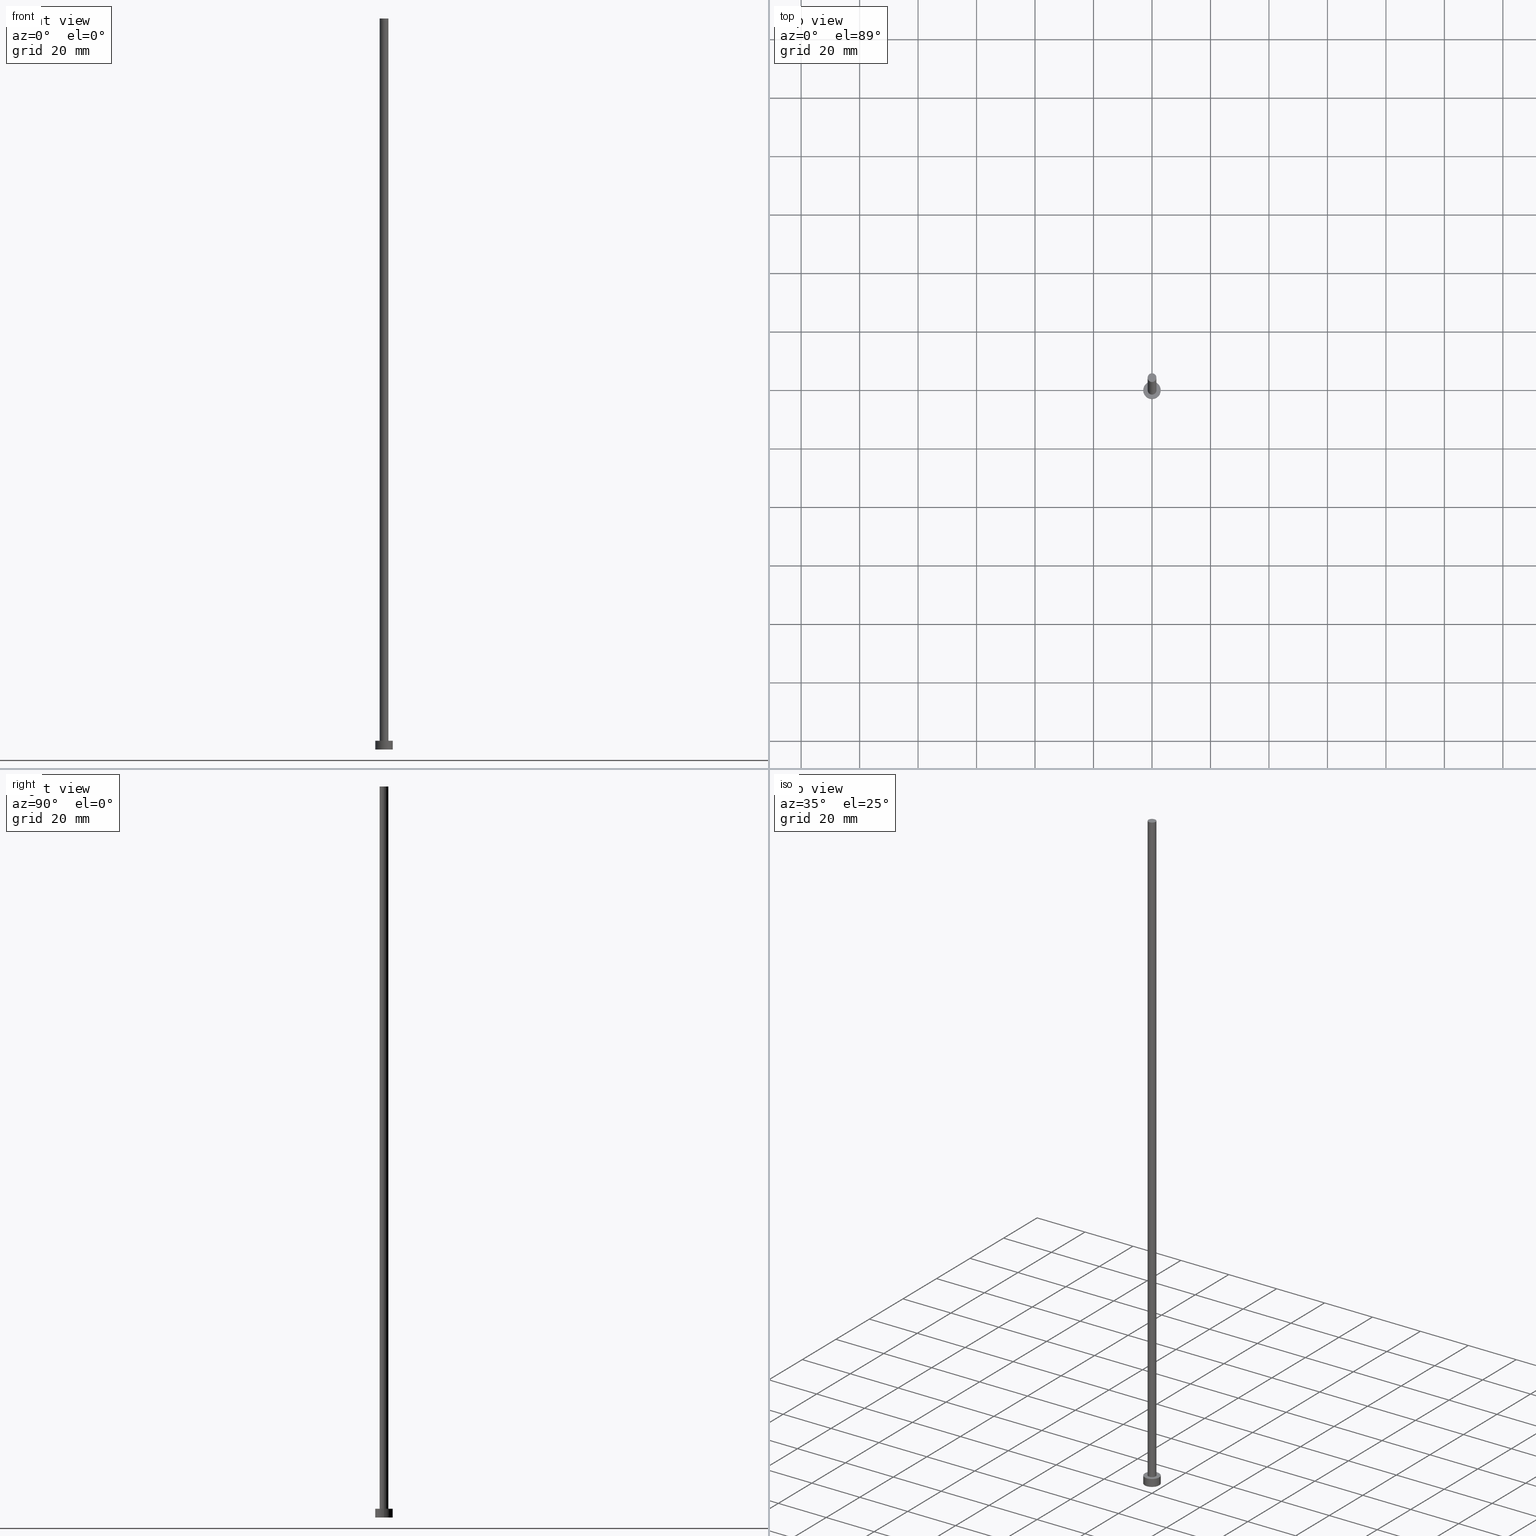
[diagram: canonical four-view strip — front | top / right | iso, engineering-drawing reading convention]
A machine part, canonical four-view strip (front | top / right | iso — engineering-drawing reading convention). The complete STEP part file that produces these views, byte-faithful:
ISO-10303-21;
HEADER;
FILE_DESCRIPTION (( 'STEP AP203' ),
    '1' );
FILE_NAME ('1f7b.STEP',
    '2023-02-13T16:54:51',
    ( '' ),
    ( '' ),
    'SwSTEP 2.0',
    'SolidWorks 2019',
    '' );
FILE_SCHEMA (( 'CONFIG_CONTROL_DESIGN' ));
ENDSEC;

DATA;
#1 = APPLICATION_PROTOCOL_DEFINITION ( 'international standard', 'config_control_design', 1994, #245 ) ;
#2 = CIRCLE ( 'NONE', #109, 1.500000000000000222 ) ;
#3 = FACE_OUTER_BOUND ( 'NONE', #86, .T. ) ;
#4 = CIRCLE ( 'NONE', #71, 3.000000000000000444 ) ;
#5 = DATE_AND_TIME ( #197, #90 ) ;
#6 = ADVANCED_FACE ( 'NONE', ( #92 ), #167, .T. ) ;
#7 = ORIENTED_EDGE ( 'NONE', *, *, #198, .T. ) ;
#8 = PRODUCT_RELATED_PRODUCT_CATEGORY ( 'detail', '', ( #31 ) ) ;
#9 = ORIENTED_EDGE ( 'NONE', *, *, #56, .F. ) ;
#10 = ORIENTED_EDGE ( 'NONE', *, *, #118, .T. ) ;
#11 = PERSON_AND_ORGANIZATION_ROLE ( 'design_supplier' ) ;
#12 = ORIENTED_EDGE ( 'NONE', *, *, #23, .F. ) ;
#13 = DIRECTION ( 'NONE',  ( 0.000000000000000000, 0.000000000000000000, 1.000000000000000000 ) ) ;
#14 = PRODUCT_DEFINITION ( 'NEZN�M�', '', #114, #137 ) ;
#15 = CARTESIAN_POINT ( 'NONE',  ( 0.000000000000000000, 0.000000000000000000, 3.000000000000000000 ) ) ;
#16 = CARTESIAN_POINT ( 'NONE',  ( 0.000000000000000000, 0.000000000000000000, 250.0000000000000000 ) ) ;
#17 = AXIS2_PLACEMENT_3D ( 'NONE', #75, #95, #149 ) ;
#18 = CARTESIAN_POINT ( 'NONE',  ( 0.000000000000000000, 0.000000000000000000, 0.000000000000000000 ) ) ;
#19 = ADVANCED_FACE ( 'NONE', ( #211 ), #78, .T. ) ;
#20 = CARTESIAN_POINT ( 'NONE',  ( 0.000000000000000000, 0.000000000000000000, 250.0000000000000000 ) ) ;
#21 = CARTESIAN_POINT ( 'NONE',  ( 3.000000000000000444, 3.673940397442060361E-16, 3.000000000000000000 ) ) ;
#22 = AXIS2_PLACEMENT_3D ( 'NONE', #129, #153, #169 ) ;
#23 = EDGE_CURVE ( 'NONE', #202, #73, #2, .T. ) ;
#24 = CARTESIAN_POINT ( 'NONE',  ( 1.500000000000000222, 1.836970198721030181E-16, 250.0000000000000000 ) ) ;
#25 =( LENGTH_UNIT ( ) NAMED_UNIT ( * ) SI_UNIT ( .MILLI., .METRE. ) );
#26 = AXIS2_PLACEMENT_3D ( 'NONE', #16, #111, #188 ) ;
#27 = DATE_AND_TIME ( #162, #135 ) ;
#28 = ORIENTED_EDGE ( 'NONE', *, *, #156, .F. ) ;
#29 = EDGE_LOOP ( 'NONE', ( #166, #200, #126, #69 ) ) ;
#30 = AXIS2_PLACEMENT_3D ( 'NONE', #37, #193, #170 ) ;
#31 = PRODUCT ( '1f7b', '1f7b', '', ( #254 ) ) ;
#32 = ORIENTED_EDGE ( 'NONE', *, *, #56, .T. ) ;
#33 = DIRECTION ( 'NONE',  ( 1.000000000000000000, 0.000000000000000000, -0.000000000000000000 ) ) ;
#34 = ADVANCED_FACE ( 'NONE', ( #207 ), #113, .F. ) ;
#35 = LINE ( 'NONE', #60, #161 ) ;
#36 = CARTESIAN_POINT ( 'NONE',  ( -3.000000000000000444, 0.000000000000000000, 3.000000000000000000 ) ) ;
#37 = CARTESIAN_POINT ( 'NONE',  ( 0.000000000000000000, 0.000000000000000000, 3.000000000000000000 ) ) ;
#38 = CIRCLE ( 'NONE', #214, 3.000000000000000444 ) ;
#39 = LOCAL_TIME ( 17, 54, 51.00000000000000000, #141 ) ;
#40 = CARTESIAN_POINT ( 'NONE',  ( 1.500000000000000222, 1.836970198721030181E-16, 250.0000000000000000 ) ) ;
#41 = DIRECTION ( 'NONE',  ( 0.000000000000000000, 0.000000000000000000, 1.000000000000000000 ) ) ;
#42 = CIRCLE ( 'NONE', #30, 1.500000000000000222 ) ;
#43 = EDGE_CURVE ( 'NONE', #144, #142, #38, .T. ) ;
#44 = CARTESIAN_POINT ( 'NONE',  ( 0.000000000000000000, 0.000000000000000000, 3.000000000000000000 ) ) ;
#45 = LINE ( 'NONE', #24, #243 ) ;
#46 = DIRECTION ( 'NONE',  ( 1.000000000000000000, 0.000000000000000000, 0.000000000000000000 ) ) ;
#47 = AXIS2_PLACEMENT_3D ( 'NONE', #44, #84, #176 ) ;
#48 = CALENDAR_DATE ( 2023, 13, 2 ) ;
#49 = DATE_AND_TIME ( #48, #120 ) ;
#50 = AXIS2_PLACEMENT_3D ( 'NONE', #98, #41, #64 ) ;
#51 = APPLICATION_CONTEXT ( 'configuration controlled 3d designs of mechanical parts and assemblies' ) ;
#52 = VERTEX_POINT ( 'NONE', #36 ) ;
#53 = VERTEX_POINT ( 'NONE', #40 ) ;
#54 = MANIFOLD_SOLID_BREP ( 'P�idat vysunut�m3', #89 ) ;
#55 = DIRECTION ( 'NONE',  ( 1.000000000000000000, 0.000000000000000000, 0.000000000000000000 ) ) ;
#56 = EDGE_CURVE ( 'NONE', #52, #237, #101, .T. ) ;
#57 = DIRECTION ( 'NONE',  ( 0.000000000000000000, 0.000000000000000000, 1.000000000000000000 ) ) ;
#58 = CARTESIAN_POINT ( 'NONE',  ( 3.000000000000000444, 3.673940397442060361E-16, 3.000000000000000000 ) ) ;
#59 = ADVANCED_FACE ( 'NONE', ( #206, #151 ), #134, .T. ) ;
#60 = CARTESIAN_POINT ( 'NONE',  ( -3.000000000000000444, 0.000000000000000000, 3.000000000000000000 ) ) ;
#61 = DIRECTION ( 'NONE',  ( 1.000000000000000000, 0.000000000000000000, -0.000000000000000000 ) ) ;
#62 = CC_DESIGN_SECURITY_CLASSIFICATION ( #110, ( #114 ) ) ;
#63 = APPROVAL_DATE_TIME ( #230, #201 ) ;
#64 = DIRECTION ( 'NONE',  ( 1.000000000000000000, 0.000000000000000000, 0.000000000000000000 ) ) ;
#65 = APPROVAL_ROLE ( '' ) ;
#66 = PERSON_AND_ORGANIZATION ( #139, #172 ) ;
#67 = CIRCLE ( 'NONE', #22, 1.500000000000000222 ) ;
#68 = ORIENTED_EDGE ( 'NONE', *, *, #83, .F. ) ;
#69 = ORIENTED_EDGE ( 'NONE', *, *, #107, .F. ) ;
#70 = PERSON_AND_ORGANIZATION_ROLE ( 'creator' ) ;
#71 = AXIS2_PLACEMENT_3D ( 'NONE', #140, #136, #46 ) ;
#72 = APPROVAL_PERSON_ORGANIZATION ( #106, #240, #123 ) ;
#73 = VERTEX_POINT ( 'NONE', #117 ) ;
#74 = CC_DESIGN_PERSON_AND_ORGANIZATION_ASSIGNMENT ( #103, #159, ( #110 ) ) ;
#75 = CARTESIAN_POINT ( 'NONE',  ( 0.000000000000000000, 0.000000000000000000, 3.000000000000000000 ) ) ;
#76 = CARTESIAN_POINT ( 'NONE',  ( -1.500000000000000222, 0.000000000000000000, 3.000000000000000000 ) ) ;
#77 = DIRECTION ( 'NONE',  ( -0.000000000000000000, -0.000000000000000000, -1.000000000000000000 ) ) ;
#78 = PLANE ( 'NONE',  #186 ) ;
#79 = DIRECTION ( 'NONE',  ( 0.000000000000000000, 0.000000000000000000, 1.000000000000000000 ) ) ;
#80 = PERSON_AND_ORGANIZATION ( #139, #172 ) ;
#81 = DIRECTION ( 'NONE',  ( -1.000000000000000000, 0.000000000000000000, 0.000000000000000000 ) ) ;
#82 = DATE_TIME_ROLE ( 'creation_date' ) ;
#83 = EDGE_CURVE ( 'NONE', #163, #53, #67, .T. ) ;
#84 = DIRECTION ( 'NONE',  ( -0.000000000000000000, -0.000000000000000000, -1.000000000000000000 ) ) ;
#85 = PERSON_AND_ORGANIZATION ( #139, #172 ) ;
#86 = EDGE_LOOP ( 'NONE', ( #244, #160, #104, #146 ) ) ;
#87 = APPROVAL_STATUS ( 'not_yet_approved' ) ;
#88 = EDGE_LOOP ( 'NONE', ( #239, #68, #183, #241 ) ) ;
#89 = CLOSED_SHELL ( 'NONE', ( #150, #251, #242, #59, #34, #6, #19 ) ) ;
#90 = LOCAL_TIME ( 17, 54, 51.00000000000000000, #232 ) ;
#91 = CC_DESIGN_PERSON_AND_ORGANIZATION_ASSIGNMENT ( #217, #11, ( #114 ) ) ;
#92 = FACE_OUTER_BOUND ( 'NONE', #88, .T. ) ;
#93 = CARTESIAN_POINT ( 'NONE',  ( -1.500000000000000222, 0.000000000000000000, 250.0000000000000000 ) ) ;
#94 = UNCERTAINTY_MEASURE_WITH_UNIT (LENGTH_MEASURE( 1.000000000000000082E-05 ), #25, 'distance_accuracy_value', 'NONE');
#95 = DIRECTION ( 'NONE',  ( 0.000000000000000000, 0.000000000000000000, 1.000000000000000000 ) ) ;
#96 = CARTESIAN_POINT ( 'NONE',  ( 0.000000000000000000, 0.000000000000000000, 250.0000000000000000 ) ) ;
#97 = DIRECTION ( 'NONE',  ( -0.000000000000000000, -0.000000000000000000, -1.000000000000000000 ) ) ;
#98 = CARTESIAN_POINT ( 'NONE',  ( 0.000000000000000000, 0.000000000000000000, 0.000000000000000000 ) ) ;
#99 = PERSON_AND_ORGANIZATION_ROLE ( 'design_owner' ) ;
#100 = CYLINDRICAL_SURFACE ( 'NONE', #47, 3.000000000000000444 ) ;
#101 = CIRCLE ( 'NONE', #17, 3.000000000000000444 ) ;
#102 = APPROVAL_DATE_TIME ( #155, #218 ) ;
#103 = PERSON_AND_ORGANIZATION ( #139, #172 ) ;
#104 = ORIENTED_EDGE ( 'NONE', *, *, #43, .T. ) ;
#105 = AXIS2_PLACEMENT_3D ( 'NONE', #20, #97, #168 ) ;
#106 = PERSON_AND_ORGANIZATION ( #139, #172 ) ;
#107 = EDGE_CURVE ( 'NONE', #163, #202, #248, .T. ) ;
#108 = EDGE_LOOP ( 'NONE', ( #12, #28 ) ) ;
#109 = AXIS2_PLACEMENT_3D ( 'NONE', #246, #250, #128 ) ;
#110 = SECURITY_CLASSIFICATION ( '', '', #145 ) ;
#111 = DIRECTION ( 'NONE',  ( -0.000000000000000000, -0.000000000000000000, -1.000000000000000000 ) ) ;
#112 = CARTESIAN_POINT ( 'NONE',  ( 3.000000000000000444, 3.673940397442060361E-16, 0.000000000000000000 ) ) ;
#113 = PLANE ( 'NONE',  #182 ) ;
#114 = PRODUCT_DEFINITION_FORMATION_WITH_SPECIFIED_SOURCE ( 'LIBOVOLN�', '', #31, .NOT_KNOWN. ) ;
#115 = DIRECTION ( 'NONE',  ( 1.000000000000000000, 0.000000000000000000, -0.000000000000000000 ) ) ;
#116 = VECTOR ( 'NONE', #131, 1000.000000000000000 ) ;
#117 = CARTESIAN_POINT ( 'NONE',  ( 1.500000000000000222, 1.836970198721030181E-16, 3.000000000000000000 ) ) ;
#118 = EDGE_CURVE ( 'NONE', #52, #142, #35, .T. ) ;
#119 = CALENDAR_DATE ( 2023, 13, 2 ) ;
#120 = LOCAL_TIME ( 17, 54, 51.00000000000000000, #143 ) ;
#121 = CC_DESIGN_APPROVAL ( #201, ( #114 ) ) ;
#122 = ORIENTED_EDGE ( 'NONE', *, *, #223, .F. ) ;
#123 = APPROVAL_ROLE ( '' ) ;
#124 = ORIENTED_EDGE ( 'NONE', *, *, #180, .T. ) ;
#125 = AXIS2_PLACEMENT_3D ( 'NONE', #252, #79, #55 ) ;
#126 = ORIENTED_EDGE ( 'NONE', *, *, #156, .T. ) ;
#127 = ORIENTED_EDGE ( 'NONE', *, *, #83, .T. ) ;
#128 = DIRECTION ( 'NONE',  ( 1.000000000000000000, 0.000000000000000000, 0.000000000000000000 ) ) ;
#129 = CARTESIAN_POINT ( 'NONE',  ( 0.000000000000000000, 0.000000000000000000, 250.0000000000000000 ) ) ;
#130 = CC_DESIGN_DATE_AND_TIME_ASSIGNMENT ( #5, #82, ( #14 ) ) ;
#131 = DIRECTION ( 'NONE',  ( -0.000000000000000000, -0.000000000000000000, -1.000000000000000000 ) ) ;
#132 = DIRECTION ( 'NONE',  ( 1.000000000000000000, 0.000000000000000000, 0.000000000000000000 ) ) ;
#133 = VECTOR ( 'NONE', #77, 1000.000000000000000 ) ;
#134 = PLANE ( 'NONE',  #253 ) ;
#135 = LOCAL_TIME ( 17, 54, 51.00000000000000000, #158 ) ;
#136 = DIRECTION ( 'NONE',  ( 0.000000000000000000, 0.000000000000000000, 1.000000000000000000 ) ) ;
#137 = DESIGN_CONTEXT ( 'detailed design', #245, 'design' ) ;
#138 = APPROVAL_STATUS ( 'not_yet_approved' ) ;
#139 = PERSON ( 'NEUR�EN�', 'NEUR�EN�', 'NEUR�EN�', ('NEUR�EN�'), ('NEUR�EN�'), ('NEUR�EN�') ) ;
#140 = CARTESIAN_POINT ( 'NONE',  ( 0.000000000000000000, 0.000000000000000000, 3.000000000000000000 ) ) ;
#141 = COORDINATED_UNIVERSAL_TIME_OFFSET ( 1, 0, .AHEAD. ) ;
#142 = VERTEX_POINT ( 'NONE', #229 ) ;
#143 = COORDINATED_UNIVERSAL_TIME_OFFSET ( 1, 0, .AHEAD. ) ;
#144 = VERTEX_POINT ( 'NONE', #112 ) ;
#145 = SECURITY_CLASSIFICATION_LEVEL ( 'unclassified' ) ;
#146 = ORIENTED_EDGE ( 'NONE', *, *, #118, .F. ) ;
#147 = DATE_TIME_ROLE ( 'classification_date' ) ;
#148 =( GEOMETRIC_REPRESENTATION_CONTEXT ( 3 ) GLOBAL_UNCERTAINTY_ASSIGNED_CONTEXT ( ( #94 ) ) GLOBAL_UNIT_ASSIGNED_CONTEXT ( ( #25, #216, #235 ) ) REPRESENTATION_CONTEXT ( 'NONE', 'WORKASPACE' ) );
#149 = DIRECTION ( 'NONE',  ( 1.000000000000000000, 0.000000000000000000, 0.000000000000000000 ) ) ;
#150 = ADVANCED_FACE ( 'NONE', ( #189 ), #208, .T. ) ;
#151 = FACE_OUTER_BOUND ( 'NONE', #225, .T. ) ;
#152 = DIRECTION ( 'NONE',  ( -0.000000000000000000, -0.000000000000000000, -1.000000000000000000 ) ) ;
#153 = DIRECTION ( 'NONE',  ( 0.000000000000000000, 0.000000000000000000, 1.000000000000000000 ) ) ;
#154 = DIRECTION ( 'NONE',  ( 1.000000000000000000, 0.000000000000000000, 0.000000000000000000 ) ) ;
#155 = DATE_AND_TIME ( #175, #191 ) ;
#156 = EDGE_CURVE ( 'NONE', #73, #202, #42, .T. ) ;
#157 = APPROVAL_STATUS ( 'not_yet_approved' ) ;
#158 = COORDINATED_UNIVERSAL_TIME_OFFSET ( 1, 0, .AHEAD. ) ;
#159 = PERSON_AND_ORGANIZATION_ROLE ( 'classification_officer' ) ;
#160 = ORIENTED_EDGE ( 'NONE', *, *, #223, .T. ) ;
#161 = VECTOR ( 'NONE', #152, 1000.000000000000000 ) ;
#162 = CALENDAR_DATE ( 2023, 13, 2 ) ;
#163 = VERTEX_POINT ( 'NONE', #93 ) ;
#164 = ORIENTED_EDGE ( 'NONE', *, *, #233, .T. ) ;
#165 = CIRCLE ( 'NONE', #178, 1.500000000000000222 ) ;
#166 = ORIENTED_EDGE ( 'NONE', *, *, #198, .F. ) ;
#167 = CYLINDRICAL_SURFACE ( 'NONE', #26, 1.500000000000000222 ) ;
#168 = DIRECTION ( 'NONE',  ( -1.000000000000000000, 0.000000000000000000, 0.000000000000000000 ) ) ;
#169 = DIRECTION ( 'NONE',  ( 1.000000000000000000, 0.000000000000000000, 0.000000000000000000 ) ) ;
#170 = DIRECTION ( 'NONE',  ( 1.000000000000000000, 0.000000000000000000, 0.000000000000000000 ) ) ;
#171 = EDGE_LOOP ( 'NONE', ( #127, #7 ) ) ;
#172 = ORGANIZATION ( 'NEUR�EN�', 'NEUR�EN�', '' ) ;
#173 = APPLICATION_PROTOCOL_DEFINITION ( 'international standard', 'config_control_design', 1994, #51 ) ;
#174 = CC_DESIGN_PERSON_AND_ORGANIZATION_ASSIGNMENT ( #181, #177, ( #14 ) ) ;
#175 = CALENDAR_DATE ( 2023, 13, 2 ) ;
#176 = DIRECTION ( 'NONE',  ( -1.000000000000000000, 0.000000000000000000, 0.000000000000000000 ) ) ;
#177 = PERSON_AND_ORGANIZATION_ROLE ( 'creator' ) ;
#178 = AXIS2_PLACEMENT_3D ( 'NONE', #228, #247, #132 ) ;
#179 = CIRCLE ( 'NONE', #125, 3.000000000000000444 ) ;
#180 = EDGE_CURVE ( 'NONE', #142, #144, #179, .T. ) ;
#181 = PERSON_AND_ORGANIZATION ( #139, #172 ) ;
#182 = AXIS2_PLACEMENT_3D ( 'NONE', #226, #190, #33 ) ;
#183 = ORIENTED_EDGE ( 'NONE', *, *, #107, .T. ) ;
#184 = APPROVAL_DATE_TIME ( #49, #240 ) ;
#185 = ORIENTED_EDGE ( 'NONE', *, *, #43, .F. ) ;
#186 = AXIS2_PLACEMENT_3D ( 'NONE', #96, #13, #61 ) ;
#187 = APPROVAL_PERSON_ORGANIZATION ( #85, #201, #234 ) ;
#188 = DIRECTION ( 'NONE',  ( -1.000000000000000000, 0.000000000000000000, 0.000000000000000000 ) ) ;
#189 = FACE_OUTER_BOUND ( 'NONE', #29, .T. ) ;
#190 = DIRECTION ( 'NONE',  ( 0.000000000000000000, 0.000000000000000000, 1.000000000000000000 ) ) ;
#191 = LOCAL_TIME ( 17, 54, 51.00000000000000000, #213 ) ;
#192 = CC_DESIGN_APPROVAL ( #240, ( #110 ) ) ;
#193 = DIRECTION ( 'NONE',  ( 0.000000000000000000, 0.000000000000000000, 1.000000000000000000 ) ) ;
#194 = CARTESIAN_POINT ( 'NONE',  ( -1.500000000000000222, 0.000000000000000000, 250.0000000000000000 ) ) ;
#195 = CC_DESIGN_PERSON_AND_ORGANIZATION_ASSIGNMENT ( #80, #99, ( #31 ) ) ;
#196 = AXIS2_PLACEMENT_3D ( 'NONE', #231, #212, #81 ) ;
#197 = CALENDAR_DATE ( 2023, 13, 2 ) ;
#198 = EDGE_CURVE ( 'NONE', #53, #163, #165, .T. ) ;
#199 = CYLINDRICAL_SURFACE ( 'NONE', #196, 3.000000000000000444 ) ;
#200 = ORIENTED_EDGE ( 'NONE', *, *, #236, .T. ) ;
#201 = APPROVAL ( #157, 'NEUR�EN�' ) ;
#202 = VERTEX_POINT ( 'NONE', #76 ) ;
#203 = CC_DESIGN_DATE_AND_TIME_ASSIGNMENT ( #27, #147, ( #110 ) ) ;
#204 = ORIENTED_EDGE ( 'NONE', *, *, #180, .F. ) ;
#205 = PRODUCT_DEFINITION_SHAPE ( 'NONE', 'NONE',  #14 ) ;
#206 = FACE_BOUND ( 'NONE', #108, .T. ) ;
#207 = FACE_OUTER_BOUND ( 'NONE', #220, .T. ) ;
#208 = CYLINDRICAL_SURFACE ( 'NONE', #105, 1.500000000000000222 ) ;
#209 = DIRECTION ( 'NONE',  ( 0.000000000000000000, 0.000000000000000000, 1.000000000000000000 ) ) ;
#210 = APPROVAL_PERSON_ORGANIZATION ( #66, #218, #65 ) ;
#211 = FACE_OUTER_BOUND ( 'NONE', #171, .T. ) ;
#212 = DIRECTION ( 'NONE',  ( -0.000000000000000000, -0.000000000000000000, -1.000000000000000000 ) ) ;
#213 = COORDINATED_UNIVERSAL_TIME_OFFSET ( 1, 0, .AHEAD. ) ;
#214 = AXIS2_PLACEMENT_3D ( 'NONE', #18, #57, #154 ) ;
#215 = DIRECTION ( 'NONE',  ( -0.000000000000000000, -0.000000000000000000, -1.000000000000000000 ) ) ;
#216 =( NAMED_UNIT ( * ) PLANE_ANGLE_UNIT ( ) SI_UNIT ( $, .RADIAN. ) );
#217 = PERSON_AND_ORGANIZATION ( #139, #172 ) ;
#218 = APPROVAL ( #138, 'NEUR�EN�' ) ;
#219 = PERSON_AND_ORGANIZATION ( #139, #172 ) ;
#220 = EDGE_LOOP ( 'NONE', ( #204, #185 ) ) ;
#221 = CC_DESIGN_APPROVAL ( #218, ( #14 ) ) ;
#222 = SHAPE_DEFINITION_REPRESENTATION ( #205, #238 ) ;
#223 = EDGE_CURVE ( 'NONE', #237, #144, #227, .T. ) ;
#224 = EDGE_LOOP ( 'NONE', ( #122, #9, #10, #124 ) ) ;
#225 = EDGE_LOOP ( 'NONE', ( #32, #164 ) ) ;
#226 = CARTESIAN_POINT ( 'NONE',  ( 0.000000000000000000, 0.000000000000000000, 0.000000000000000000 ) ) ;
#227 = LINE ( 'NONE', #58, #116 ) ;
#228 = CARTESIAN_POINT ( 'NONE',  ( 0.000000000000000000, 0.000000000000000000, 250.0000000000000000 ) ) ;
#229 = CARTESIAN_POINT ( 'NONE',  ( -3.000000000000000444, 0.000000000000000000, 0.000000000000000000 ) ) ;
#230 = DATE_AND_TIME ( #119, #39 ) ;
#231 = CARTESIAN_POINT ( 'NONE',  ( 0.000000000000000000, 0.000000000000000000, 3.000000000000000000 ) ) ;
#232 = COORDINATED_UNIVERSAL_TIME_OFFSET ( 1, 0, .AHEAD. ) ;
#233 = EDGE_CURVE ( 'NONE', #237, #52, #4, .T. ) ;
#234 = APPROVAL_ROLE ( '' ) ;
#235 =( NAMED_UNIT ( * ) SI_UNIT ( $, .STERADIAN. ) SOLID_ANGLE_UNIT ( ) );
#236 = EDGE_CURVE ( 'NONE', #53, #73, #45, .T. ) ;
#237 = VERTEX_POINT ( 'NONE', #21 ) ;
#238 = ADVANCED_BREP_SHAPE_REPRESENTATION ( '1f7b', ( #54, #50 ), #148 ) ;
#239 = ORIENTED_EDGE ( 'NONE', *, *, #236, .F. ) ;
#240 = APPROVAL ( #87, 'NEUR�EN�' ) ;
#241 = ORIENTED_EDGE ( 'NONE', *, *, #23, .T. ) ;
#242 = ADVANCED_FACE ( 'NONE', ( #255 ), #199, .T. ) ;
#243 = VECTOR ( 'NONE', #215, 1000.000000000000000 ) ;
#244 = ORIENTED_EDGE ( 'NONE', *, *, #233, .F. ) ;
#245 = APPLICATION_CONTEXT ( 'configuration controlled 3d designs of mechanical parts and assemblies' ) ;
#246 = CARTESIAN_POINT ( 'NONE',  ( 0.000000000000000000, 0.000000000000000000, 3.000000000000000000 ) ) ;
#247 = DIRECTION ( 'NONE',  ( 0.000000000000000000, 0.000000000000000000, 1.000000000000000000 ) ) ;
#248 = LINE ( 'NONE', #194, #133 ) ;
#249 = CC_DESIGN_PERSON_AND_ORGANIZATION_ASSIGNMENT ( #219, #70, ( #114 ) ) ;
#250 = DIRECTION ( 'NONE',  ( 0.000000000000000000, 0.000000000000000000, 1.000000000000000000 ) ) ;
#251 = ADVANCED_FACE ( 'NONE', ( #3 ), #100, .T. ) ;
#252 = CARTESIAN_POINT ( 'NONE',  ( 0.000000000000000000, 0.000000000000000000, 0.000000000000000000 ) ) ;
#253 = AXIS2_PLACEMENT_3D ( 'NONE', #15, #209, #115 ) ;
#254 = MECHANICAL_CONTEXT ( 'NONE', #51, 'mechanical' ) ;
#255 = FACE_OUTER_BOUND ( 'NONE', #224, .T. ) ;
ENDSEC;
END-ISO-10303-21;
